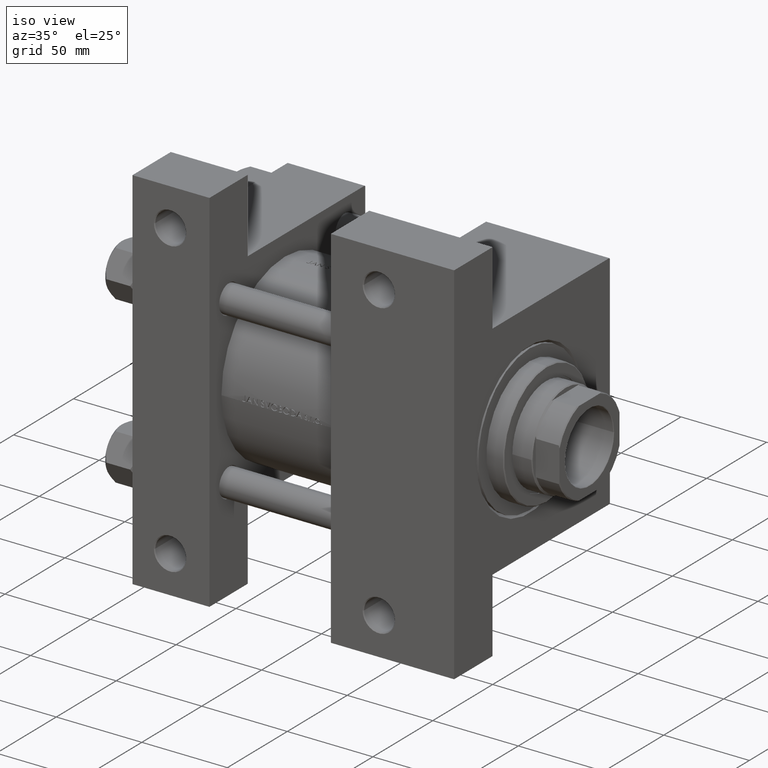
[diagram: clean part render]
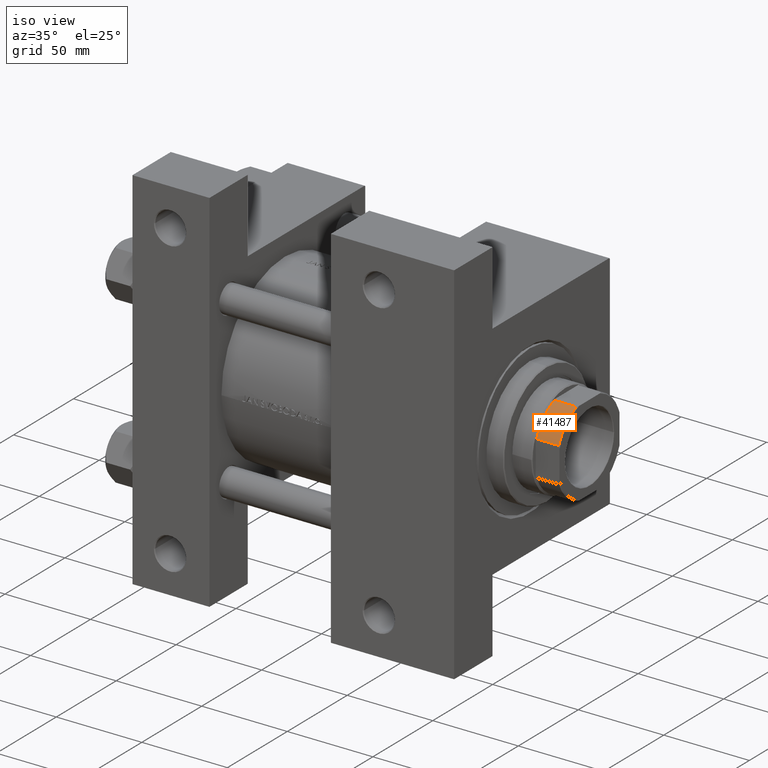
[diagram: same view with one face highlighted and labeled with its STEP entity id]
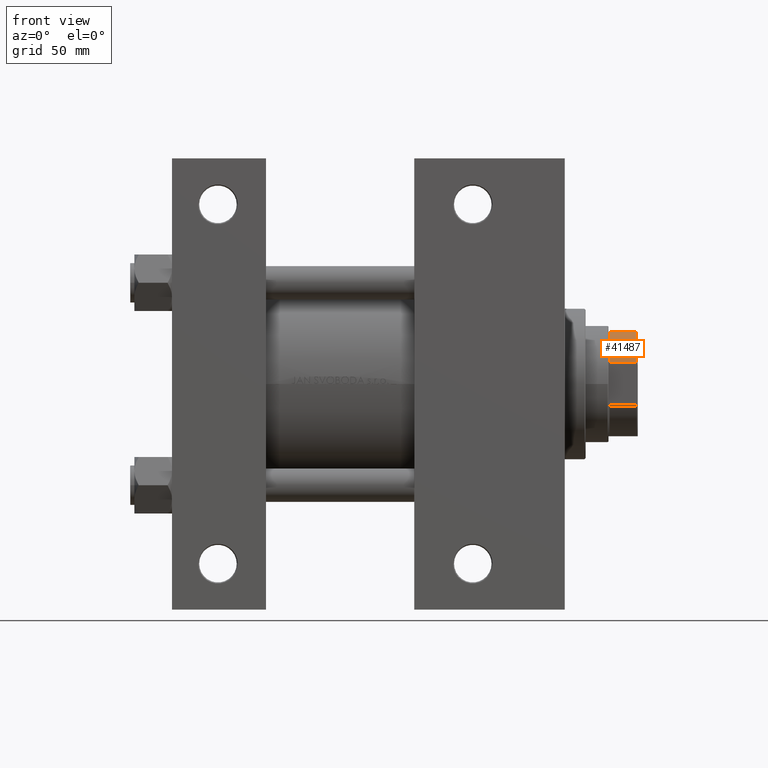
[diagram: same view with one face highlighted and labeled with its STEP entity id]
A machine part, iso view. The second image highlights one B-rep face of the part: STEP entity #41487.
A second angle (front view) of the same face is appended — the face is thin or edge-on in the first view.
In plain terms, the highlighted cylindrical surface (partial cylindrical patch) has radius 27 mm, axis along (1, 0, 0).
Its self-contained STEP definition (entity closure, byte-faithful):
#90 = EDGE_LOOP ( 'NONE', ( #45134, #43092, #23327, #5109 ) ) ;
#340 = DIRECTION ( 'NONE',  ( -0.000000000000000000, -0.000000000000000000, -1.000000000000000000 ) ) ;
#557 = LINE ( 'NONE', #34073, #17790 ) ;
#5024 = AXIS2_PLACEMENT_3D ( 'NONE', #26574, #340, #41399 ) ;
#5109 = ORIENTED_EDGE ( 'NONE', *, *, #7830, .T. ) ;
#5722 = EDGE_CURVE ( 'NONE', #37132, #21492, #557, .T. ) ;
#6665 = FACE_OUTER_BOUND ( 'NONE', #90, .T. ) ;
#6894 = CARTESIAN_POINT ( 'NONE',  ( 0.000000000000000000, 0.000000000000000000, -0.001000000000001000089 ) ) ;
#7830 = EDGE_CURVE ( 'NONE', #37132, #9556, #29446, .T. ) ;
#9556 = VERTEX_POINT ( 'NONE', #38683 ) ;
#16305 = AXIS2_PLACEMENT_3D ( 'NONE', #44513, #26037, #40865 ) ;
#16310 = VECTOR ( 'NONE', #44356, 1000.000000000000000 ) ;
#17790 = VECTOR ( 'NONE', #41379, 1000.000000000000000 ) ;
#18328 = AXIS2_PLACEMENT_3D ( 'NONE', #6894, #28764, #43600 ) ;
#18359 = LINE ( 'NONE', #41437, #16310 ) ;
#19538 = EDGE_CURVE ( 'NONE', #9556, #41403, #18359, .T. ) ;
#21492 = VERTEX_POINT ( 'NONE', #44078 ) ;
#23327 = ORIENTED_EDGE ( 'NONE', *, *, #5722, .F. ) ;
#24386 = CIRCLE ( 'NONE', #5024, 26.99999999999999645 ) ;
#24894 = CYLINDRICAL_SURFACE ( 'NONE', #18328, 26.99999999999999645 ) ;
#26037 = DIRECTION ( 'NONE',  ( -0.000000000000000000, -0.000000000000000000, 1.000000000000000000 ) ) ;
#26574 = CARTESIAN_POINT ( 'NONE',  ( 0.000000000000000000, 0.000000000000000000, 177.5000000000000284 ) ) ;
#28764 = DIRECTION ( 'NONE',  ( -0.000000000000000000, -0.000000000000000000, 1.000000000000000000 ) ) ;
#29446 = CIRCLE ( 'NONE', #16305, 26.99999999999999645 ) ;
#33150 = EDGE_CURVE ( 'NONE', #41403, #21492, #24386, .T. ) ;
#34073 = CARTESIAN_POINT ( 'NONE',  ( 10.19803902718555655, -25.00000000000000000, -0.001000000000001000089 ) ) ;
#35583 = CARTESIAN_POINT ( 'NONE',  ( 24.99999999999999645, -10.19803902718556188, 177.5000000000000284 ) ) ;
#37132 = VERTEX_POINT ( 'NONE', #45852 ) ;
#38683 = CARTESIAN_POINT ( 'NONE',  ( 24.99999999999999645, -10.19803902718556188, 164.5000000000000000 ) ) ;
#40865 = DIRECTION ( 'NONE',  ( -1.000000000000000000, 8.881784197001252323E-16, 0.000000000000000000 ) ) ;
#41379 = DIRECTION ( 'NONE',  ( -0.000000000000000000, -0.000000000000000000, 1.000000000000000000 ) ) ;
#41399 = DIRECTION ( 'NONE',  ( 1.000000000000000000, 0.000000000000000000, 0.000000000000000000 ) ) ;
#41403 = VERTEX_POINT ( 'NONE', #35583 ) ;
#41437 = CARTESIAN_POINT ( 'NONE',  ( 24.99999999999999645, -10.19803902718556188, -0.001000000000001000089 ) ) ;
#41487 = ADVANCED_FACE ( 'NONE', ( #6665 ), #24894, .T. ) ;
#43092 = ORIENTED_EDGE ( 'NONE', *, *, #33150, .T. ) ;
#43600 = DIRECTION ( 'NONE',  ( 1.000000000000000000, 0.000000000000000000, 0.000000000000000000 ) ) ;
#44078 = CARTESIAN_POINT ( 'NONE',  ( 10.19803902718555655, -25.00000000000000000, 177.5000000000000284 ) ) ;
#44356 = DIRECTION ( 'NONE',  ( -0.000000000000000000, -0.000000000000000000, 1.000000000000000000 ) ) ;
#44513 = CARTESIAN_POINT ( 'NONE',  ( 0.000000000000000000, 0.000000000000000000, 164.5000000000000000 ) ) ;
#45134 = ORIENTED_EDGE ( 'NONE', *, *, #19538, .T. ) ;
#45852 = CARTESIAN_POINT ( 'NONE',  ( 10.19803902718555655, -25.00000000000000000, 164.5000000000000000 ) ) ;